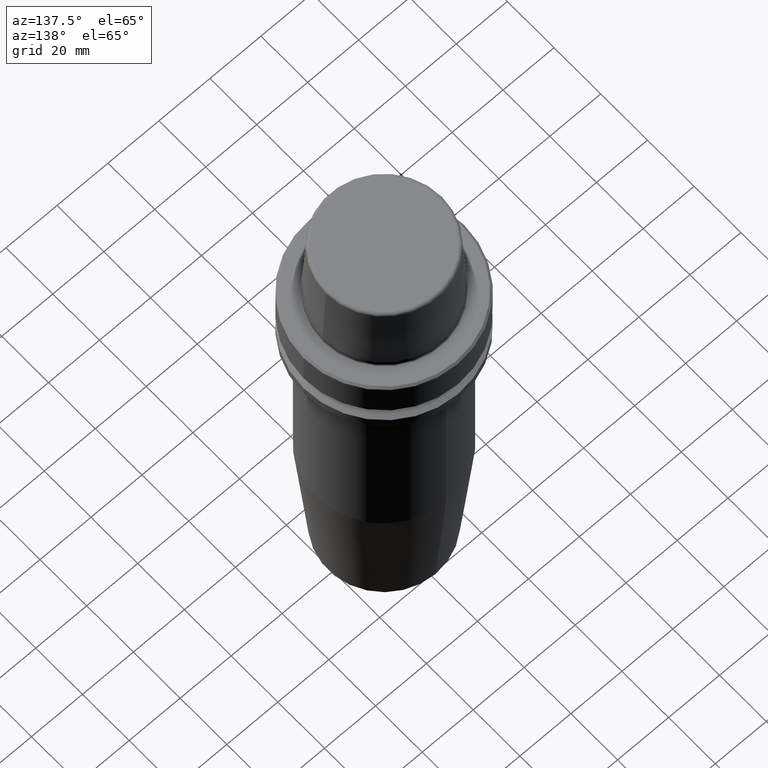
[diagram: clean part render]
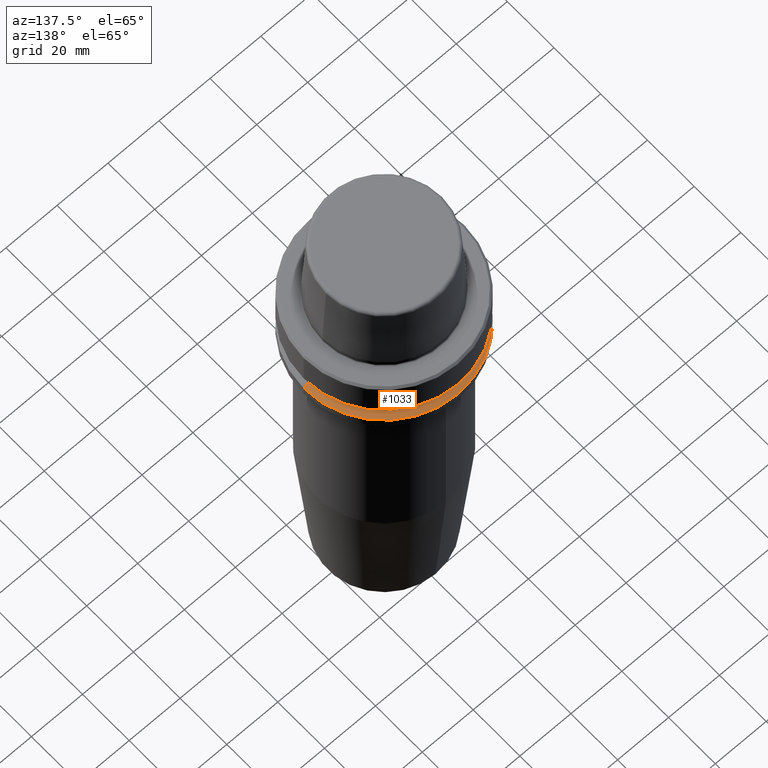
[diagram: same view with one face highlighted and labeled with its STEP entity id]
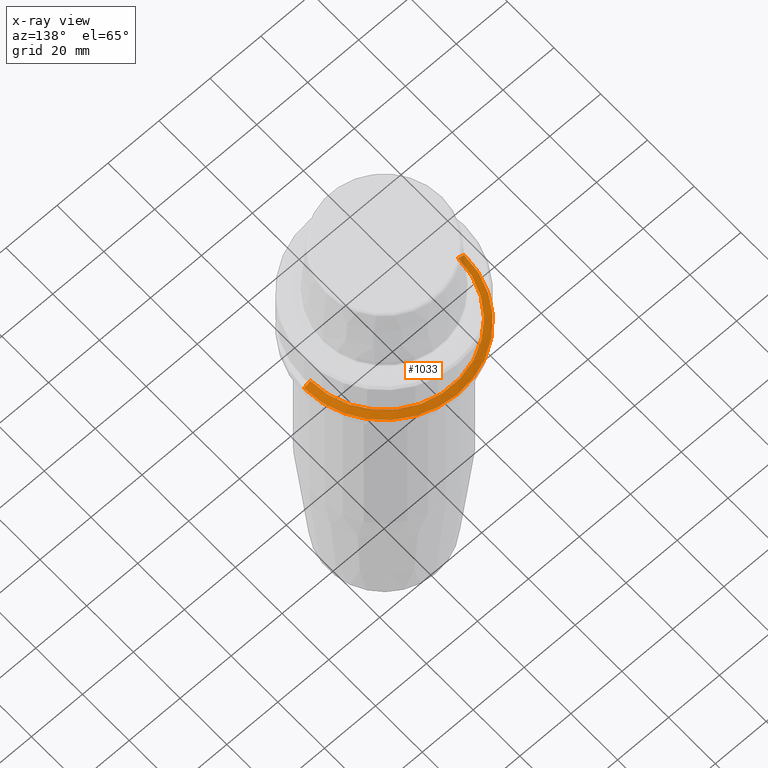
[diagram: x-ray of the same camera — body ghosted, the highlighted face saturated]
A machine part, auxiliary view. The second image highlights one B-rep face of the part: STEP entity #1033.
The next image is the same camera in x-ray: the body ghosted, the highlighted face saturated — about 2% of this face is hidden behind the body in this view.
In plain terms, the highlighted conical surface has half-angle 60 deg.
Its self-contained STEP definition (entity closure, byte-faithful):
#16 = CARTESIAN_POINT ( 'NONE',  ( 31.50000000000000000, 0.0000000000000000000, -21.37749907475931700 ) ) ;
#54 = LINE ( 'NONE', #860, #795 ) ;
#87 = EDGE_LOOP ( 'NONE', ( #687, #646, #682, #142 ) ) ;
#94 = CARTESIAN_POINT ( 'NONE',  ( 31.50000000000000000, 3.857637417314162700E-015, -21.37749907475931700 ) ) ;
#142 = ORIENTED_EDGE ( 'NONE', *, *, #948, .F. ) ;
#143 = EDGE_CURVE ( 'NONE', #183, #875, #1253, .T. ) ;
#173 = DIRECTION ( 'NONE',  ( -0.8660254037844410400, 0.0000000000000000000, -0.4999999999999958400 ) ) ;
#183 = VERTEX_POINT ( 'NONE', #1174 ) ;
#442 = CARTESIAN_POINT ( 'NONE',  ( 0.0000000000000000000, 0.0000000000000000000, -19.90000000000001600 ) ) ;
#445 = CONICAL_SURFACE ( 'NONE', #781, 31.50000000000000000, 1.047197551196602500 ) ;
#446 = CARTESIAN_POINT ( 'NONE',  ( -31.50000000000000000, 3.857637417314162700E-015, -21.37749907475931700 ) ) ;
#503 = EDGE_CURVE ( 'NONE', #875, #1066, #598, .T. ) ;
#546 = DIRECTION ( 'NONE',  ( -0.0000000000000000000, -0.0000000000000000000, 1.000000000000000000 ) ) ;
#598 = CIRCLE ( 'NONE', #1145, 31.50000000000000000 ) ;
#630 = CARTESIAN_POINT ( 'NONE',  ( -28.94089653438085100, 0.0000000000000000000, -19.90000000000001600 ) ) ;
#646 = ORIENTED_EDGE ( 'NONE', *, *, #143, .T. ) ;
#675 = VECTOR ( 'NONE', #895, 1000.000000000000100 ) ;
#682 = ORIENTED_EDGE ( 'NONE', *, *, #503, .T. ) ;
#687 = ORIENTED_EDGE ( 'NONE', *, *, #1086, .F. ) ;
#781 = AXIS2_PLACEMENT_3D ( 'NONE', #954, #1045, #951 ) ;
#795 = VECTOR ( 'NONE', #173, 1000.000000000000100 ) ;
#860 = CARTESIAN_POINT ( 'NONE',  ( -31.50000000000000000, 0.0000000000000000000, -21.37749907475931700 ) ) ;
#875 = VERTEX_POINT ( 'NONE', #16 ) ;
#895 = DIRECTION ( 'NONE',  ( 0.8660254037844410400, 1.060575238724909700E-016, -0.4999999999999958400 ) ) ;
#934 = DIRECTION ( 'NONE',  ( 1.000000000000000000, 0.0000000000000000000, 0.0000000000000000000 ) ) ;
#948 = EDGE_CURVE ( 'NONE', #1177, #1066, #54, .T. ) ;
#951 = DIRECTION ( 'NONE',  ( -1.000000000000000000, 0.0000000000000000000, 0.0000000000000000000 ) ) ;
#954 = CARTESIAN_POINT ( 'NONE',  ( 0.0000000000000000000, 0.0000000000000000000, -21.37749907475931700 ) ) ;
#995 = CIRCLE ( 'NONE', #1170, 28.94089653438085100 ) ;
#1031 = DIRECTION ( 'NONE',  ( -0.0000000000000000000, -0.0000000000000000000, 1.000000000000000000 ) ) ;
#1033 = ADVANCED_FACE ( 'NONE', ( #1226 ), #445, .T. ) ;
#1045 = DIRECTION ( 'NONE',  ( 0.0000000000000000000, 0.0000000000000000000, -1.000000000000000000 ) ) ;
#1066 = VERTEX_POINT ( 'NONE', #446 ) ;
#1086 = EDGE_CURVE ( 'NONE', #183, #1177, #995, .T. ) ;
#1127 = DIRECTION ( 'NONE',  ( 1.000000000000000000, 0.0000000000000000000, 0.0000000000000000000 ) ) ;
#1145 = AXIS2_PLACEMENT_3D ( 'NONE', #1229, #546, #1127 ) ;
#1170 = AXIS2_PLACEMENT_3D ( 'NONE', #442, #1031, #934 ) ;
#1174 = CARTESIAN_POINT ( 'NONE',  ( 28.94089653438085100, 3.700937523921292900E-015, -19.90000000000001600 ) ) ;
#1177 = VERTEX_POINT ( 'NONE', #630 ) ;
#1226 = FACE_OUTER_BOUND ( 'NONE', #87, .T. ) ;
#1229 = CARTESIAN_POINT ( 'NONE',  ( 0.0000000000000000000, 0.0000000000000000000, -21.37749907475931700 ) ) ;
#1253 = LINE ( 'NONE', #94, #675 ) ;